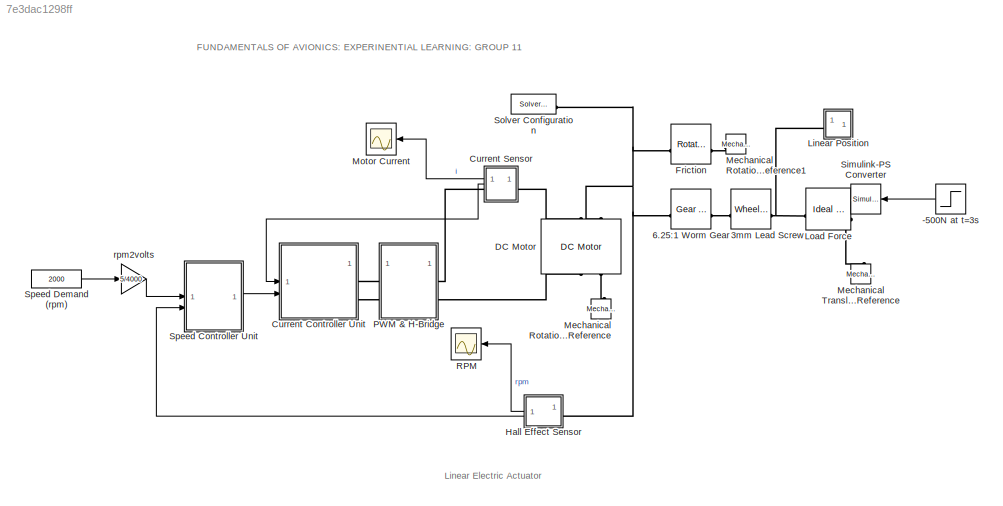
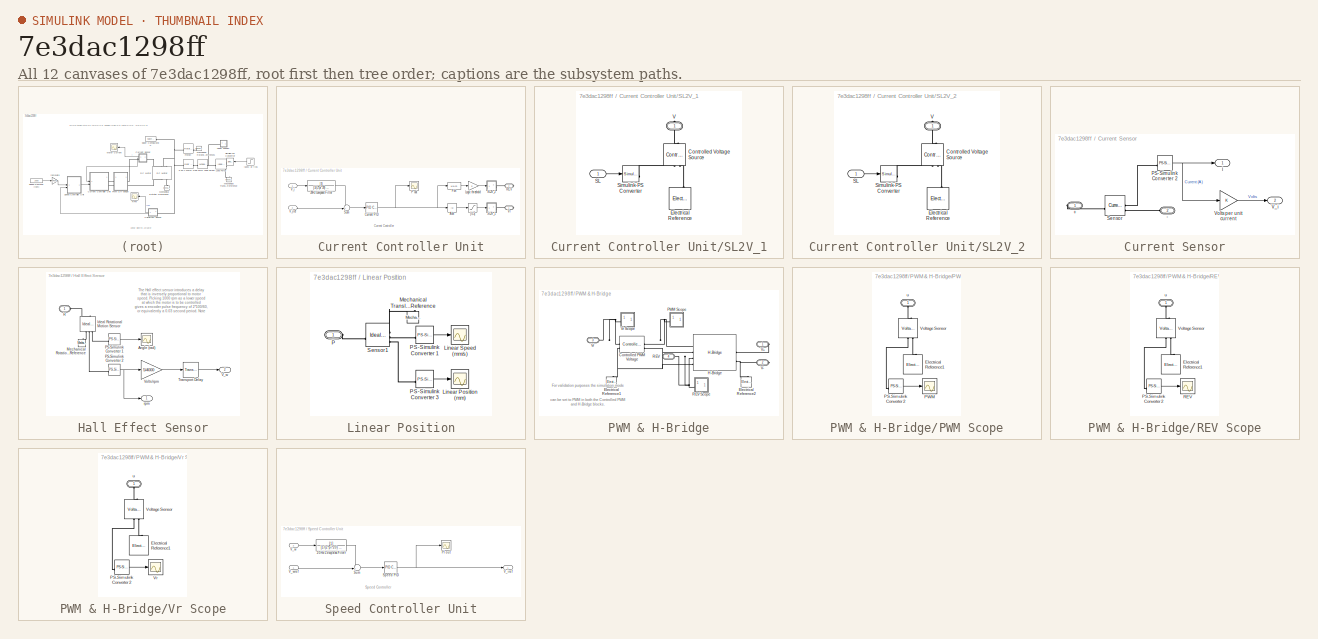
[diagram: thumbnail index - all 12 canvases of the model, root first then tree order]
MODEL slx_7e3dac1298ff
KIND model
CONFIG AbsTol = auto
CONFIG EnableMultiTasking = on
CONFIG FixedStep = auto
CONFIG MaxStep = 0.01
CONFIG MinStep = auto
CONFIG RelTol = 1e-3
CONFIG SampleTimeConstraint = Unconstrained
CONFIG SolverName = ode23t
CONFIG StartTime = 0.0
CONFIG StopTime = 6
BLOCK [Step] -500N at t=3s
  After = -500
  SampleTime = 0
  Time = 3
BLOCK [Reference] 3mm Lead Screw  REF=fl_lib/Mechanical/Mechanisms/Wheel and Axle
  SourceBlock = fl_lib/Mechanical/Mechanisms/Wheel and Axle
  SourceType = Wheel and Axle
BLOCK [Reference] 6.25:1 Worm Gear  REF=fl_lib/Mechanical/Mechanisms/Gear Box
  SourceBlock = fl_lib/Mechanical/Mechanisms/Gear Box
  SourceType = Gear Box
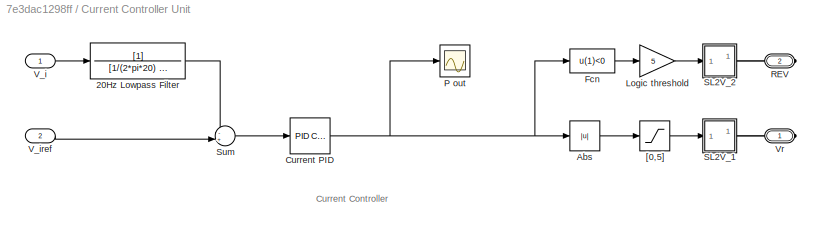
BLOCK [SubSystem] Current Controller Unit
BLOCK [TransferFcn] Current Controller Unit/20Hz Lowpass Filter
  Denominator = [1/(2*pi*20) 1]
BLOCK [Abs] Current Controller Unit/Abs
  SaturateOnIntegerOverflow = off
BLOCK [Reference] Current Controller Unit/Current PID  REF=slpidlib/PID Controller
  SourceBlock = slpidlib/PID Controller
  SourceType = PID 1dof
BLOCK [Fcn] Current Controller Unit/Fcn
  Expr = u(1)<0
BLOCK [Gain] Current Controller Unit/Logic threshold
  Gain = 5
BLOCK [Scope] Current Controller Unit/P out
  Floating = off
  NumInputPorts = 1
  ScopeSpecificationString = Simulink.scopes.TimeScopeBlockCfg('CurrentConfiguration', extmgr.ConfigurationSet(extmgr.Configuration('Core','General UI',true,'FigureColor',[0.156862745098039 0.156862745098039 0.156862745098039],'MessageLogAutoOpenMode','for warn/fail messages','ShowCloseAll',true,'ShowBringAllForward',true),extmgr.Configuration('Core','Source UI',true,'PlaybackToolbar',true),extmgr.Configuration('Sources','Wir...<+1994ch>
BLOCK [PMIOPort] Current Controller Unit/REV
  Port = 2
  Side = Right
BLOCK [SubSystem] Current Controller Unit/SL2V_1
BLOCK [Reference] Current Controller Unit/SL2V_1/Controlled Voltage Source  REF=fl_lib/Electrical/Electrical Sources/Controlled Voltage
Source
  NameLocation = right
  SourceBlock = fl_lib/Electrical/Electrical Sources/Controlled Voltage\nSource
  SourceType = Controlled Voltage\nSource
BLOCK [Reference] Current Controller Unit/SL2V_1/Electrical Reference  REF=fl_lib/Electrical/Electrical Elements/Electrical Reference
  NameLocation = right
  SourceBlock = fl_lib/Electrical/Electrical Elements/Electrical Reference
  SourceType = Electrical Reference
BLOCK [Inport] Current Controller Unit/SL2V_1/SL
BLOCK [Reference] Current Controller Unit/SL2V_1/Simulink-PS Converter  REF=nesl_utility/Simulink-PS
Converter
  SourceBlock = nesl_utility/Simulink-PS\nConverter
  SourceType = Simulink-PS\nConverter
BLOCK [PMIOPort] Current Controller Unit/SL2V_1/V
  NameLocation = right
  Side = Right
BLOCK [SubSystem] Current Controller Unit/SL2V_2
BLOCK [Reference] Current Controller Unit/SL2V_2/Controlled Voltage Source  REF=fl_lib/Electrical/Electrical Sources/Controlled Voltage
Source
  NameLocation = right
  SourceBlock = fl_lib/Electrical/Electrical Sources/Controlled Voltage\nSource
  SourceType = Controlled Voltage\nSource
BLOCK [Reference] Current Controller Unit/SL2V_2/Electrical Reference  REF=fl_lib/Electrical/Electrical Elements/Electrical Reference
  NameLocation = right
  SourceBlock = fl_lib/Electrical/Electrical Elements/Electrical Reference
  SourceType = Electrical Reference
BLOCK [Inport] Current Controller Unit/SL2V_2/SL
BLOCK [Reference] Current Controller Unit/SL2V_2/Simulink-PS Converter  REF=nesl_utility/Simulink-PS
Converter
  SourceBlock = nesl_utility/Simulink-PS\nConverter
  SourceType = Simulink-PS\nConverter
BLOCK [PMIOPort] Current Controller Unit/SL2V_2/V
  NameLocation = right
  Side = Right
BLOCK [Sum] Current Controller Unit/Sum
  Inputs = -+|
BLOCK [Inport] Current Controller Unit/V_i
BLOCK [Inport] Current Controller Unit/V_iref
  Port = 2
BLOCK [PMIOPort] Current Controller Unit/Vr
  Side = Right
BLOCK [Saturate] Current Controller Unit/[0,5]
  LowerLimit = 0
  UpperLimit = 5
BLOCK [SubSystem] Current Sensor
BLOCK [PMIOPort] Current Sensor/+
  Side = Right
BLOCK [PMIOPort] Current Sensor/-
  Port = 2
  Side = Left
BLOCK [Reference] Current Sensor/PS-Simulink Converter 2  REF=nesl_utility/PS-Simulink
Converter
  SourceBlock = nesl_utility/PS-Simulink\nConverter
  SourceType = PS-Simulink\nConverter
BLOCK [Reference] Current Sensor/Sensor  REF=fl_lib/Electrical/Electrical Sensors/Current Sensor
  SourceBlock = fl_lib/Electrical/Electrical Sensors/Current Sensor
  SourceType = Current Sensor
BLOCK [Outport] Current Sensor/V_i
  Port = 2
  VectorParamsAs1DForOutWhenUnconnected = off
BLOCK [Gain] Current Sensor/Volts per unit current
BLOCK [Outport] Current Sensor/i
  VectorParamsAs1DForOutWhenUnconnected = off
BLOCK [Reference] DC Motor  REF=ee_lib/Electromechanical/Brushed Motors/DC Motor
  NameLocation = left
  SourceBlock = ee_lib/Electromechanical/Brushed Motors/DC Motor
  SourceType = DC Motor
BLOCK [Reference] Friction  REF=fl_lib/Mechanical/Rotational Elements/Rotational Friction
  SourceBlock = fl_lib/Mechanical/Rotational Elements/Rotational Friction
  SourceType = Rotational Friction
BLOCK [SubSystem] Hall Effect Sensor
BLOCK [Scope] Hall Effect Sensor/Angle (rad)
  Floating = off
  NumInputPorts = 1
  ScopeSpecificationString = Simulink.scopes.TimeScopeBlockCfg('CurrentConfiguration', extmgr.ConfigurationSet(extmgr.Configuration('Core','General UI',true,'ShowNewAction',false,'ShowLoadConfigSet',false,'ShowSaveConfigSet',false,'DisplayFullSourceName',false,'MessageLogAutoOpenMode','for warn/fail messages','MessageLogDialogPosition',[20 520 450 500],'ShowMainToolbar',true,'ShowPlaybackToolbar',false,'ShowStatusbar',true,'S...<+3031ch>
BLOCK [Reference] Hall Effect Sensor/Ideal Rotational Motion Sensor  REF=fl_lib/Mechanical/Mechanical Sensors/Ideal Rotational
Motion Sensor
  NameLocation = right
  SourceBlock = fl_lib/Mechanical/Mechanical Sensors/Ideal Rotational\nMotion Sensor
  SourceType = Ideal Rotational\nMotion Sensor
BLOCK [Reference] Hall Effect Sensor/Mechanical Rotational Reference  REF=fl_lib/Mechanical/Rotational Elements/Mechanical
Rotational Reference
  NameLocation = left
  SourceBlock = fl_lib/Mechanical/Rotational Elements/Mechanical\nRotational Reference
  SourceType = Mechanical\nRotational Reference
BLOCK [Reference] Hall Effect Sensor/PS-Simulink Converter 1  REF=nesl_utility/PS-Simulink
Converter
  SourceBlock = nesl_utility/PS-Simulink\nConverter
  SourceType = PS-Simulink\nConverter
BLOCK [Reference] Hall Effect Sensor/PS-Simulink Converter 2  REF=nesl_utility/PS-Simulink
Converter
  SourceBlock = nesl_utility/PS-Simulink\nConverter
  SourceType = PS-Simulink\nConverter
BLOCK [PMIOPort] Hall Effect Sensor/R
  Side = Left
BLOCK [TransportDelay] Hall Effect Sensor/Transport Delay
  DelayTime = 0.03
  PadeOrder = 1
BLOCK [Outport] Hall Effect Sensor/V_w
  Port = 2
  VectorParamsAs1DForOutWhenUnconnected = off
BLOCK [Gain] Hall Effect Sensor/Volts//rpm
  Gain = 5/4000
BLOCK [Outport] Hall Effect Sensor/rpm
  VectorParamsAs1DForOutWhenUnconnected = off
BLOCK [SubSystem] Linear Position
  NameLocation = top
BLOCK [Scope] Linear Position/Linear Position (mm)
  Floating = off
  NumInputPorts = 1
  ScopeSpecificationString = Simulink.scopes.TimeScopeBlockCfg('CurrentConfiguration', extmgr.ConfigurationSet(extmgr.Configuration('Core','General UI',true,'ShowNewAction',false,'ShowLoadConfigSet',false,'ShowSaveConfigSet',false,'DisplayFullSourceName',false,'MessageLogAutoOpenMode','for warn/fail messages','MessageLogDialogPosition',[20 520 450 500],'ShowMainToolbar',true,'ShowPlaybackToolbar',false,'ShowStatusbar',true,'S...<+3032ch>
BLOCK [Scope] Linear Position/Linear Speed (mm//s)
  Floating = off
  NumInputPorts = 1
  ScopeSpecificationString = Simulink.scopes.TimeScopeBlockCfg('CurrentConfiguration', extmgr.ConfigurationSet(extmgr.Configuration('Core','General UI',true,'ShowNewAction',false,'ShowLoadConfigSet',false,'ShowSaveConfigSet',false,'DisplayFullSourceName',false,'MessageLogAutoOpenMode','for warn/fail messages','MessageLogDialogPosition',[20 520 450 500],'ShowMainToolbar',true,'ShowPlaybackToolbar',false,'ShowStatusbar',true,'S...<+3036ch>
BLOCK [Reference] Linear Position/Mechanical Translational Reference  REF=fl_lib/Mechanical/Translational
Elements/Mechanical
Translational
Reference
  NameLocation = right
  SourceBlock = fl_lib/Mechanical/Translational\nElements/Mechanical\nTranslational\nReference
  SourceType = Mechanical\nTranslational\nReference
BLOCK [PMIOPort] Linear Position/P
  Side = Left
BLOCK [Reference] Linear Position/PS-Simulink Converter 1  REF=nesl_utility/PS-Simulink
Converter
  SourceBlock = nesl_utility/PS-Simulink\nConverter
  SourceType = PS-Simulink\nConverter
BLOCK [Reference] Linear Position/PS-Simulink Converter 3  REF=nesl_utility/PS-Simulink
Converter
  SourceBlock = nesl_utility/PS-Simulink\nConverter
  SourceType = PS-Simulink\nConverter
BLOCK [Reference] Linear Position/Sensor1  REF=fl_lib/Mechanical/Mechanical Sensors/Ideal Translational
Motion Sensor
  SourceBlock = fl_lib/Mechanical/Mechanical Sensors/Ideal Translational\nMotion Sensor
  SourceType = Ideal Translational\nMotion Sensor
BLOCK [Reference] Load Force  REF=fl_lib/Mechanical/Mechanical Sources/Ideal Force Source
  SourceBlock = fl_lib/Mechanical/Mechanical Sources/Ideal Force Source
  SourceType = Ideal Force Source
BLOCK [Reference] Mechanical Rotational Reference  REF=fl_lib/Mechanical/Rotational Elements/Mechanical
Rotational Reference
  NameLocation = left
  SourceBlock = fl_lib/Mechanical/Rotational Elements/Mechanical\nRotational Reference
  SourceType = Mechanical\nRotational Reference
BLOCK [Reference] Mechanical Rotational Reference1  REF=fl_lib/Mechanical/Rotational Elements/Mechanical
Rotational Reference
  SourceBlock = fl_lib/Mechanical/Rotational Elements/Mechanical\nRotational Reference
  SourceType = Mechanical\nRotational Reference
BLOCK [Reference] Mechanical Translational Reference  REF=fl_lib/Mechanical/Translational
Elements/Mechanical
Translational
Reference
  NameLocation = right
  SourceBlock = fl_lib/Mechanical/Translational\nElements/Mechanical\nTranslational\nReference
  SourceType = Mechanical\nTranslational\nReference
BLOCK [Scope] Motor Current
  Floating = off
  NumInputPorts = 1
  ScopeSpecificationString = Simulink.scopes.TimeScopeBlockCfg('CurrentConfiguration', extmgr.ConfigurationSet(extmgr.Configuration('Core','General UI',true,'FigureColor',[0.156862745098039 0.156862745098039 0.156862745098039],'MessageLogAutoOpenMode','for warn/fail messages','ShowCloseAll',true,'ShowBringAllForward',true),extmgr.Configuration('Core','Source UI',true,'PlaybackToolbar',true),extmgr.Configuration('Sources','Wir...<+2087ch>
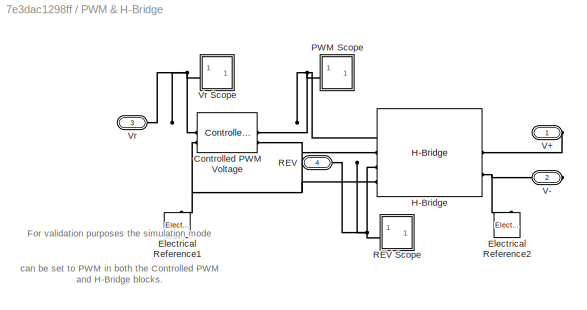
BLOCK [SubSystem] PWM & H-Bridge
BLOCK [Reference] PWM & H-Bridge/Controlled PWM Voltage  REF=ee_lib/Integrated Circuits/Controlled PWM
Voltage
  SourceBlock = ee_lib/Integrated Circuits/Controlled PWM\nVoltage
  SourceType = Controlled PWM\nVoltage
BLOCK [Reference] PWM & H-Bridge/Electrical Reference1  REF=fl_lib/Electrical/Electrical Elements/Electrical Reference
  NameLocation = right
  SourceBlock = fl_lib/Electrical/Electrical Elements/Electrical Reference
  SourceType = Electrical Reference
BLOCK [Reference] PWM & H-Bridge/Electrical Reference2  REF=fl_lib/Electrical/Electrical Elements/Electrical Reference
  NameLocation = right
  SourceBlock = fl_lib/Electrical/Electrical Elements/Electrical Reference
  SourceType = Electrical Reference
BLOCK [Reference] PWM & H-Bridge/H-Bridge  REF=ee_lib/Semiconductors &
Converters/Converters/H-Bridge
  SourceBlock = ee_lib/Semiconductors &\nConverters/Converters/H-Bridge
  SourceType = H-Bridge
BLOCK [SubSystem] PWM & H-Bridge/PWM Scope
BLOCK [Reference] PWM & H-Bridge/PWM Scope/Electrical Reference1  REF=fl_lib/Electrical/Electrical Elements/Electrical Reference
  NameLocation = right
  SourceBlock = fl_lib/Electrical/Electrical Elements/Electrical Reference
  SourceType = Electrical Reference
BLOCK [Reference] PWM & H-Bridge/PWM Scope/PS-Simulink Converter 2  REF=nesl_utility/PS-Simulink
Converter
  SourceBlock = nesl_utility/PS-Simulink\nConverter
  SourceType = PS-Simulink\nConverter
BLOCK [Scope] PWM & H-Bridge/PWM Scope/PWM
  Floating = off
  NumInputPorts = 1
  ScopeSpecificationString = Simulink.scopes.TimeScopeBlockCfg('CurrentConfiguration', extmgr.ConfigurationSet(extmgr.Configuration('Core','General UI',true,'ShowNewAction',false,'ShowLoadConfigSet',false,'ShowSaveConfigSet',false,'DisplayFullSourceName',false,'MessageLogAutoOpenMode','for warn/fail messages','MessageLogDialogPosition',[20 520 450 500],'ShowMainToolbar',true,'ShowPlaybackToolbar',false,'ShowStatusbar',true,'S...<+3033ch>
BLOCK [Reference] PWM & H-Bridge/PWM Scope/Voltage Sensor  REF=fl_lib/Electrical/Electrical Sensors/Voltage Sensor
  NameLocation = right
  SourceBlock = fl_lib/Electrical/Electrical Sensors/Voltage Sensor
  SourceType = Voltage Sensor
BLOCK [PMIOPort] PWM & H-Bridge/PWM Scope/u
  NameLocation = right
  Side = Left
BLOCK [PMIOPort] PWM & H-Bridge/REV
  Port = 4
  Side = Left
BLOCK [SubSystem] PWM & H-Bridge/REV Scope
BLOCK [Reference] PWM & H-Bridge/REV Scope/Electrical Reference1  REF=fl_lib/Electrical/Electrical Elements/Electrical Reference
  NameLocation = right
  SourceBlock = fl_lib/Electrical/Electrical Elements/Electrical Reference
  SourceType = Electrical Reference
BLOCK [Reference] PWM & H-Bridge/REV Scope/PS-Simulink Converter 2  REF=nesl_utility/PS-Simulink
Converter
  SourceBlock = nesl_utility/PS-Simulink\nConverter
  SourceType = PS-Simulink\nConverter
BLOCK [Scope] PWM & H-Bridge/REV Scope/REV
  Floating = off
  NumInputPorts = 1
  ScopeSpecificationString = Simulink.scopes.TimeScopeBlockCfg('CurrentConfiguration', extmgr.ConfigurationSet(extmgr.Configuration('Core','General UI',true,'ShowNewAction',false,'ShowLoadConfigSet',false,'ShowSaveConfigSet',false,'DisplayFullSourceName',false,'MessageLogAutoOpenMode','for warn/fail messages','MessageLogDialogPosition',[20 520 450 500],'ShowMainToolbar',true,'ShowPlaybackToolbar',false,'ShowStatusbar',true,'S...<+3033ch>
BLOCK [Reference] PWM & H-Bridge/REV Scope/Voltage Sensor  REF=fl_lib/Electrical/Electrical Sensors/Voltage Sensor
  NameLocation = right
  SourceBlock = fl_lib/Electrical/Electrical Sensors/Voltage Sensor
  SourceType = Voltage Sensor
BLOCK [PMIOPort] PWM & H-Bridge/REV Scope/u
  NameLocation = right
  Side = Left
BLOCK [PMIOPort] PWM & H-Bridge/V+
  Side = Right
BLOCK [PMIOPort] PWM & H-Bridge/V-
  Port = 2
  Side = Right
BLOCK [PMIOPort] PWM & H-Bridge/Vr
  Port = 3
  Side = Left
BLOCK [SubSystem] PWM & H-Bridge/Vr Scope
BLOCK [Reference] PWM & H-Bridge/Vr Scope/Electrical Reference1  REF=fl_lib/Electrical/Electrical Elements/Electrical Reference
  NameLocation = right
  SourceBlock = fl_lib/Electrical/Electrical Elements/Electrical Reference
  SourceType = Electrical Reference
BLOCK [Reference] PWM & H-Bridge/Vr Scope/PS-Simulink Converter 2  REF=nesl_utility/PS-Simulink
Converter
  SourceBlock = nesl_utility/PS-Simulink\nConverter
  SourceType = PS-Simulink\nConverter
BLOCK [Reference] PWM & H-Bridge/Vr Scope/Voltage Sensor  REF=fl_lib/Electrical/Electrical Sensors/Voltage Sensor
  NameLocation = right
  SourceBlock = fl_lib/Electrical/Electrical Sensors/Voltage Sensor
  SourceType = Voltage Sensor
BLOCK [Scope] PWM & H-Bridge/Vr Scope/Vr
  Floating = off
  NumInputPorts = 1
  ScopeSpecificationString = Simulink.scopes.TimeScopeBlockCfg('CurrentConfiguration', extmgr.ConfigurationSet(extmgr.Configuration('Core','General UI',true,'ShowNewAction',false,'ShowLoadConfigSet',false,'ShowSaveConfigSet',false,'DisplayFullSourceName',false,'MessageLogAutoOpenMode','for warn/fail messages','MessageLogDialogPosition',[20 520 450 500],'ShowMainToolbar',true,'ShowPlaybackToolbar',false,'ShowStatusbar',true,'S...<+3032ch>
BLOCK [PMIOPort] PWM & H-Bridge/Vr Scope/u
  NameLocation = right
  Side = Left
BLOCK [Scope] RPM
  Floating = off
  NumInputPorts = 1
  ScopeSpecificationString = Simulink.scopes.TimeScopeBlockCfg('CurrentConfiguration', extmgr.ConfigurationSet(extmgr.Configuration('Core','General UI',true,'FigureColor',[0.156862745098039 0.156862745098039 0.156862745098039],'MessageLogAutoOpenMode','for warn/fail messages','ShowCloseAll',true,'ShowBringAllForward',true),extmgr.Configuration('Core','Source UI',true,'PlaybackToolbar',true),extmgr.Configuration('Sources','Wir...<+2080ch>
BLOCK [Reference] Simulink-PS Converter  REF=nesl_utility/Simulink-PS
Converter
  SourceBlock = nesl_utility/Simulink-PS\nConverter
  SourceType = Simulink-PS\nConverter
BLOCK [Reference] Solver Configuration  REF=nesl_utility/Solver
Configuration
  SourceBlock = nesl_utility/Solver\nConfiguration
  SourceType = Solver\nConfiguration
BLOCK [SubSystem] Speed Controller Unit
BLOCK [TransferFcn] Speed Controller Unit/20Hz Lowpass Filter
  Denominator = [1/(2*pi*20) 1]
BLOCK [Scope] Speed Controller Unit/PI out
  Floating = off
  NumInputPorts = 1
  ScopeSpecificationString = Simulink.scopes.TimeScopeBlockCfg('CurrentConfiguration', extmgr.ConfigurationSet(extmgr.Configuration('Core','General UI',true,'ShowNewAction',false,'ShowLoadConfigSet',false,'ShowSaveConfigSet',false,'DisplayFullSourceName',false,'MessageLogAutoOpenMode','for warn/fail messages','MessageLogDialogPosition',[20 520 450 500],'ShowMainToolbar',true,'ShowPlaybackToolbar',false,'ShowStatusbar',true,'S...<+3008ch>
BLOCK [Reference] Speed Controller Unit/Speed PID  REF=slpidlib/PID Controller
  SourceBlock = slpidlib/PID Controller
  SourceType = PID 1dof
BLOCK [Sum] Speed Controller Unit/Sum
  Inputs = -+|
BLOCK [Outport] Speed Controller Unit/V_iref
  VectorParamsAs1DForOutWhenUnconnected = off
BLOCK [Inport] Speed Controller Unit/V_w
  Port = 2
BLOCK [Inport] Speed Controller Unit/V_wref
BLOCK [Constant] Speed Demand (rpm)
  Value = 2000
BLOCK [Gain] rpm2volts
  Gain = 5/4000
ANNOTATION (root): FUNDAMENTALS OF AVIONICS: EXPERINENTIAL LEARNING: GROUP 11
ANNOTATION (root): Linear Electric Actuator
ANNOTATION Current Controller Unit: Current Controller
ANNOTATION Hall Effect Sensor: The Hall effect sensor introduces a delay that is inversely proportional to motor speed. Picking 1000 rpm as a lower speed at which the motor is to be controlled gives a encoder pulse frequency of 2*100/60, or equivalently a 0.03 second period. Note that this is only an approximation, and valid at 1000 rpm. Higher speeds have less delay, so if performance is OK at 1000 rpm, then it should be all t...<+48ch>
ANNOTATION PWM & H-Bridge: For validation purposes the simulation mode can be set to PWM in both the Controlled PWM and H-Bridge blocks.
ANNOTATION Speed Controller Unit: Speed Controller
LINE -500N at t=3s:1 -> Simulink-PS Converter:1
LINE Current Controller Unit/20Hz Lowpass Filter:1 -> Current Controller Unit/Sum:1
LINE Current Controller Unit/Abs:1 -> Current Controller Unit/[0,5]:1
NET Current Controller Unit/Current PID:1 -> Current Controller Unit/Abs:1, Current Controller Unit/Fcn:1, Current Controller Unit/P out:1
LINE Current Controller Unit/Fcn:1 -> Current Controller Unit/Logic threshold:1
LINE Current Controller Unit/Logic threshold:1 -> Current Controller Unit/SL2V_2:1
LINE Current Controller Unit/SL2V_1/SL:1 -> Current Controller Unit/SL2V_1/Simulink-PS Converter:1
LINE Current Controller Unit/SL2V_2/SL:1 -> Current Controller Unit/SL2V_2/Simulink-PS Converter:1
LINE Current Controller Unit/Sum:1 -> Current Controller Unit/Current PID:1
LINE Current Controller Unit/V_i:1 -> Current Controller Unit/20Hz Lowpass Filter:1
LINE Current Controller Unit/V_iref:1 -> Current Controller Unit/Sum:2
LINE Current Controller Unit/[0,5]:1 -> Current Controller Unit/SL2V_1:1
NET Current Sensor/PS-Simulink Converter 2:1 -> Current Sensor/Volts per unit current:1, Current Sensor/i:1
LINE Current Sensor/Volts per unit current:1 -> Current Sensor/V_i:1
LINE Current Sensor:1 -> Motor Current:1
LINE Current Sensor:2 -> Current Controller Unit:1
LINE Hall Effect Sensor/PS-Simulink Converter 1:1 -> Hall Effect Sensor/Angle (rad):1
NET Hall Effect Sensor/PS-Simulink Converter 2:1 -> Hall Effect Sensor/Volts//rpm:1, Hall Effect Sensor/rpm:1
LINE Hall Effect Sensor/Transport Delay:1 -> Hall Effect Sensor/V_w:1
LINE Hall Effect Sensor/Volts//rpm:1 -> Hall Effect Sensor/Transport Delay:1
LINE Hall Effect Sensor:1 -> RPM:1
LINE Hall Effect Sensor:2 -> Speed Controller Unit:2
LINE Linear Position/PS-Simulink Converter 1:1 -> Linear Position/Linear Speed (mm//s):1
LINE Linear Position/PS-Simulink Converter 3:1 -> Linear Position/Linear Position (mm):1
LINE PWM & H-Bridge/PWM Scope/PS-Simulink Converter 2:1 -> PWM & H-Bridge/PWM Scope/PWM:1
LINE PWM & H-Bridge/REV Scope/PS-Simulink Converter 2:1 -> PWM & H-Bridge/REV Scope/REV:1
LINE PWM & H-Bridge/Vr Scope/PS-Simulink Converter 2:1 -> PWM & H-Bridge/Vr Scope/Vr:1
LINE Speed Controller Unit/20Hz Lowpass Filter:1 -> Speed Controller Unit/Sum:1
NET Speed Controller Unit/Speed PID:1 -> Speed Controller Unit/PI out:1, Speed Controller Unit/V_iref:1
LINE Speed Controller Unit/Sum:1 -> Speed Controller Unit/Speed PID:1
LINE Speed Controller Unit/V_w:1 -> Speed Controller Unit/20Hz Lowpass Filter:1
LINE Speed Controller Unit/V_wref:1 -> Speed Controller Unit/Sum:2
LINE Speed Controller Unit:1 -> Current Controller Unit:2
LINE Speed Demand (rpm):1 -> rpm2volts:1
LINE rpm2volts:1 -> Speed Controller Unit:1
PLINE 3mm Lead Screw:LConn1 -- 6.25:1 Worm Gear:RConn1
PNET net1: 3mm Lead Screw:RConn1 -- Linear Position:LConn1 -- Load Force:LConn1
PNET net2: 6.25:1 Worm Gear:LConn1 -- DC Motor:LConn2 -- Friction:LConn1 -- Hall Effect Sensor:LConn1 -- Solver Configuration:RConn1
PLINE Current Controller Unit/REV:RConn1 -- Current Controller Unit/SL2V_2:RConn1
PLINE Current Controller Unit/SL2V_1/Controlled Voltage Source:LConn1 -- Current Controller Unit/SL2V_1/V:RConn1
PLINE Current Controller Unit/SL2V_1/Controlled Voltage Source:RConn1 -- Current Controller Unit/SL2V_1/Simulink-PS Converter:RConn1
PLINE Current Controller Unit/SL2V_1/Controlled Voltage Source:RConn2 -- Current Controller Unit/SL2V_1/Electrical Reference:LConn1
PLINE Current Controller Unit/SL2V_1:RConn1 -- Current Controller Unit/Vr:RConn1
PLINE Current Controller Unit/SL2V_2/Controlled Voltage Source:LConn1 -- Current Controller Unit/SL2V_2/V:RConn1
PLINE Current Controller Unit/SL2V_2/Controlled Voltage Source:RConn1 -- Current Controller Unit/SL2V_2/Simulink-PS Converter:RConn1
PLINE Current Controller Unit/SL2V_2/Controlled Voltage Source:RConn2 -- Current Controller Unit/SL2V_2/Electrical Reference:LConn1
PLINE Current Controller Unit:RConn1 -- PWM & H-Bridge:LConn1
PLINE Current Controller Unit:RConn2 -- PWM & H-Bridge:LConn2
PLINE Current Sensor/+:RConn1 -- Current Sensor/Sensor:LConn1
PLINE Current Sensor/-:RConn1 -- Current Sensor/Sensor:RConn2
PLINE Current Sensor/PS-Simulink Converter 2:LConn1 -- Current Sensor/Sensor:RConn1
PLINE Current Sensor:LConn1 -- DC Motor:LConn1
PLINE Current Sensor:RConn1 -- PWM & H-Bridge:RConn1
PLINE DC Motor:RConn1 -- PWM & H-Bridge:RConn2
PLINE DC Motor:RConn2 -- Mechanical Rotational Reference:LConn1
PLINE Friction:RConn1 -- Mechanical Rotational Reference1:LConn1
PLINE Hall Effect Sensor/Ideal Rotational Motion Sensor:LConn1 -- Hall Effect Sensor/R:RConn1
PLINE Hall Effect Sensor/Ideal Rotational Motion Sensor:RConn1 -- Hall Effect Sensor/Mechanical Rotational Reference:LConn1
PLINE Hall Effect Sensor/Ideal Rotational Motion Sensor:RConn2 -- Hall Effect Sensor/PS-Simulink Converter 2:LConn1
PLINE Hall Effect Sensor/Ideal Rotational Motion Sensor:RConn3 -- Hall Effect Sensor/PS-Simulink Converter 1:LConn1
PLINE Linear Position/Mechanical Translational Reference:LConn1 -- Linear Position/Sensor1:RConn1
PLINE Linear Position/P:RConn1 -- Linear Position/Sensor1:LConn1
PLINE Linear Position/PS-Simulink Converter 1:LConn1 -- Linear Position/Sensor1:RConn2
PLINE Linear Position/PS-Simulink Converter 3:LConn1 -- Linear Position/Sensor1:RConn3
PLINE Load Force:RConn1 -- Simulink-PS Converter:RConn1
PLINE Load Force:RConn2 -- Mechanical Translational Reference:LConn1
PNET net3: PWM & H-Bridge/Controlled PWM Voltage:LConn1 -- PWM & H-Bridge/Vr Scope:LConn1 -- PWM & H-Bridge/Vr:RConn1
PNET net4: PWM & H-Bridge/Controlled PWM Voltage:LConn2 -- PWM & H-Bridge/Controlled PWM Voltage:RConn2 -- PWM & H-Bridge/Electrical Reference1:LConn1 -- PWM & H-Bridge/H-Bridge:LConn2 -- PWM & H-Bridge/H-Bridge:LConn4
PNET net5: PWM & H-Bridge/Controlled PWM Voltage:RConn1 -- PWM & H-Bridge/H-Bridge:LConn1 -- PWM & H-Bridge/PWM Scope:LConn1
PNET net6: PWM & H-Bridge/Electrical Reference2:LConn1 -- PWM & H-Bridge/H-Bridge:RConn2 -- PWM & H-Bridge/V-:RConn1
PNET net7: PWM & H-Bridge/H-Bridge:LConn3 -- PWM & H-Bridge/REV Scope:LConn1 -- PWM & H-Bridge/REV:RConn1
PLINE PWM & H-Bridge/H-Bridge:RConn1 -- PWM & H-Bridge/V+:RConn1
PLINE PWM & H-Bridge/PWM Scope/Electrical Reference1:LConn1 -- PWM & H-Bridge/PWM Scope/Voltage Sensor:RConn2
PLINE PWM & H-Bridge/PWM Scope/PS-Simulink Converter 2:LConn1 -- PWM & H-Bridge/PWM Scope/Voltage Sensor:RConn1
PLINE PWM & H-Bridge/PWM Scope/Voltage Sensor:LConn1 -- PWM & H-Bridge/PWM Scope/u:RConn1
PLINE PWM & H-Bridge/REV Scope/Electrical Reference1:LConn1 -- PWM & H-Bridge/REV Scope/Voltage Sensor:RConn2
PLINE PWM & H-Bridge/REV Scope/PS-Simulink Converter 2:LConn1 -- PWM & H-Bridge/REV Scope/Voltage Sensor:RConn1
PLINE PWM & H-Bridge/REV Scope/Voltage Sensor:LConn1 -- PWM & H-Bridge/REV Scope/u:RConn1
PLINE PWM & H-Bridge/Vr Scope/Electrical Reference1:LConn1 -- PWM & H-Bridge/Vr Scope/Voltage Sensor:RConn2
PLINE PWM & H-Bridge/Vr Scope/PS-Simulink Converter 2:LConn1 -- PWM & H-Bridge/Vr Scope/Voltage Sensor:RConn1
PLINE PWM & H-Bridge/Vr Scope/Voltage Sensor:LConn1 -- PWM & H-Bridge/Vr Scope/u:RConn1
note: NET lines group one-source signal fan-out (src -> all destinations, sorted); 1:1 wires keep LINE; PNET lines group multi-terminal physical nets as a canonical sorted terminal list (undirected conserving connections); 2-terminal nets keep the pairwise PLINE form
